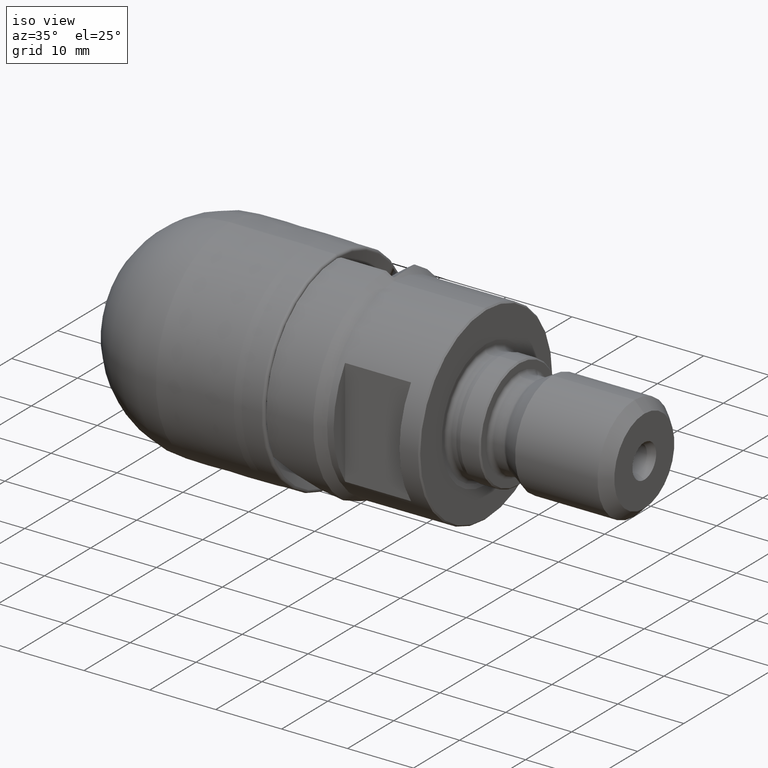
[diagram: clean part render]
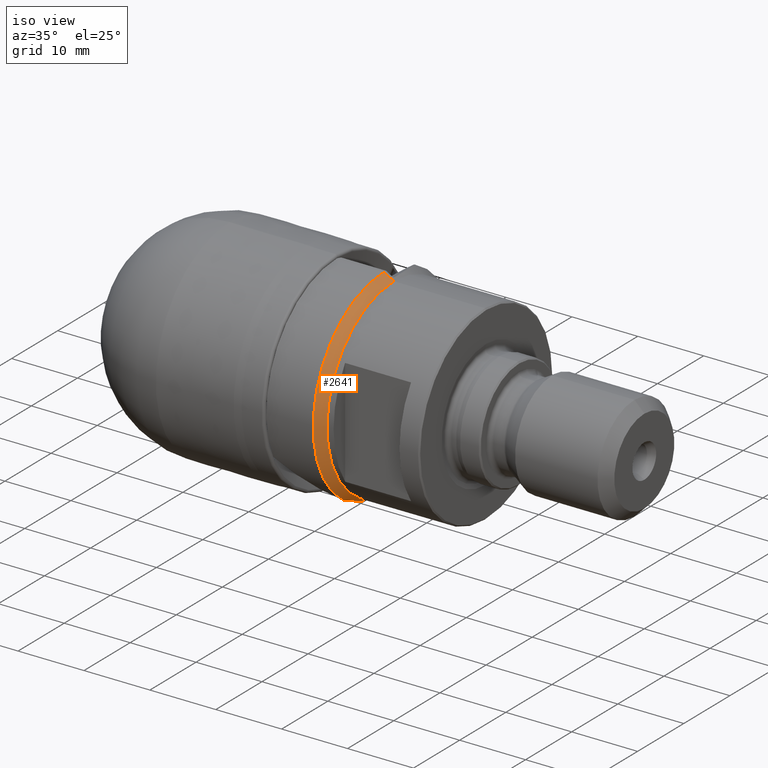
[diagram: same view with one face highlighted and labeled with its STEP entity id]
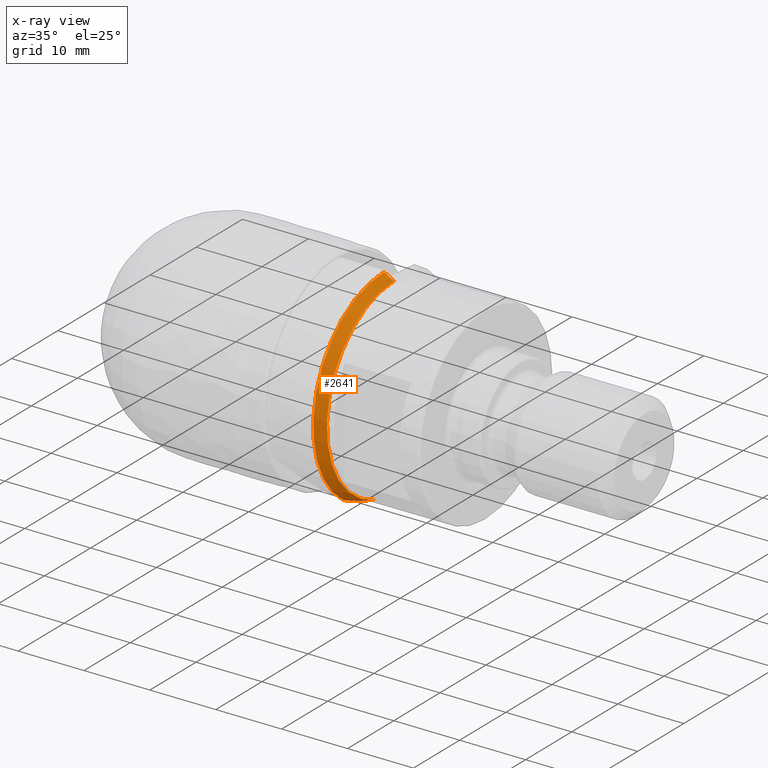
[diagram: x-ray of the same camera — body ghosted, the highlighted face saturated]
A machine part, iso view. The second image highlights one B-rep face of the part: STEP entity #2641.
The next image is the same camera in x-ray: the body ghosted, the highlighted face saturated — about 0% of this face is hidden behind the body in this view.
In plain terms, the highlighted conical surface has half-angle 30 deg.
Its self-contained STEP definition (entity closure, byte-faithful):
#9 = EDGE_CURVE ( 'NONE', #2995, #4748, #4597, .T. ) ;
#335 = EDGE_CURVE ( 'NONE', #3639, #3854, #2492, .T. ) ;
#348 = CARTESIAN_POINT ( 'NONE',  ( 35.01559800999999084, 0.0000000000000000000, 1.084202172485504434E-16 ) ) ;
#370 = CARTESIAN_POINT ( 'NONE',  ( 34.19094347606496598, -7.326510210078835073, -13.15173485614012705 ) ) ;
#529 = AXIS2_PLACEMENT_3D ( 'NONE', #348, #1873, #4899 ) ;
#635 = CARTESIAN_POINT ( 'NONE',  ( 35.01559800999999084, 0.0000000000000000000, 1.084202172485504434E-16 ) ) ;
#976 = ORIENTED_EDGE ( 'NONE', *, *, #2085, .F. ) ;
#1260 = CONICAL_SURFACE ( 'NONE', #2072, 14.50000000000000000, 0.5235987755982929315 ) ;
#1468 = EDGE_CURVE ( 'NONE', #4748, #3639, #1802, .T. ) ;
#1493 = CARTESIAN_POINT ( 'NONE',  ( 35.01559800999999794, -4.297169950117389448, -13.84862196826125036 ) ) ;
#1802 = CIRCLE ( 'NONE', #529, 14.50000000000000000 ) ;
#1873 = DIRECTION ( 'NONE',  ( -1.000000000000000000, 0.0000000000000000000, 0.0000000000000000000 ) ) ;
#2011 = ORIENTED_EDGE ( 'NONE', *, *, #9, .T. ) ;
#2072 = AXIS2_PLACEMENT_3D ( 'NONE', #635, #4029, #4369 ) ;
#2085 = EDGE_CURVE ( 'NONE', #2995, #3854, #3382, .T. ) ;
#2167 = DIRECTION ( 'NONE',  ( -0.8660254037844415942, 0.0000000000000000000, 0.4999999999999948930 ) ) ;
#2394 = CARTESIAN_POINT ( 'NONE',  ( 33.52251955386206816, 0.0000000000000000000, 15.36202924857244945 ) ) ;
#2439 = FACE_OUTER_BOUND ( 'NONE', #4733, .T. ) ;
#2492 = LINE ( 'NONE', #2861, #4598 ) ;
#2641 = ADVANCED_FACE ( 'NONE', ( #2439 ), #1260, .T. ) ;
#2739 = DIRECTION ( 'NONE',  ( -1.000000000000000000, 0.0000000000000000000, 0.0000000000000000000 ) ) ;
#2770 = CARTESIAN_POINT ( 'NONE',  ( 35.01559800999999794, -4.297169950117389448, -13.84862196826125036 ) ) ;
#2861 = CARTESIAN_POINT ( 'NONE',  ( 35.01559800999999084, 0.0000000000000000000, 14.50000000000000000 ) ) ;
#2995 = VERTEX_POINT ( 'NONE', #3555 ) ;
#3248 = ORIENTED_EDGE ( 'NONE', *, *, #335, .T. ) ;
#3382 = CIRCLE ( 'NONE', #3850, 15.36202924857244767 ) ;
#3384 = CARTESIAN_POINT ( 'NONE',  ( 33.52251955386206816, -8.806961710224534556, -12.58687284708295451 ) ) ;
#3499 = ORIENTED_EDGE ( 'NONE', *, *, #1468, .T. ) ;
#3555 = CARTESIAN_POINT ( 'NONE',  ( 33.52251955386206816, -8.806961710224534556, -12.58687284708295451 ) ) ;
#3639 = VERTEX_POINT ( 'NONE', #3993 ) ;
#3850 = AXIS2_PLACEMENT_3D ( 'NONE', #4600, #2739, #4261 ) ;
#3854 = VERTEX_POINT ( 'NONE', #2394 ) ;
#3993 = CARTESIAN_POINT ( 'NONE',  ( 35.01559800999999084, 0.0000000000000000000, 14.50000000000000178 ) ) ;
#4029 = DIRECTION ( 'NONE',  ( -1.000000000000000000, 0.0000000000000000000, 0.0000000000000000000 ) ) ;
#4261 = DIRECTION ( 'NONE',  ( 0.0000000000000000000, 0.0000000000000000000, 1.000000000000000000 ) ) ;
#4369 = DIRECTION ( 'NONE',  ( 0.0000000000000000000, 0.0000000000000000000, 1.000000000000000000 ) ) ;
#4597 =( BOUNDED_CURVE ( )  B_SPLINE_CURVE ( 3, ( #3384, #370, #4896, #1493 ),
 .UNSPECIFIED., .F., .F. ) 
 B_SPLINE_CURVE_WITH_KNOTS ( ( 4, 4 ),
 ( 2.869866850372494227, 3.010258111485595744 ),
 .UNSPECIFIED. ) 
 CURVE ( )  GEOMETRIC_REPRESENTATION_ITEM ( )  RATIONAL_B_SPLINE_CURVE ( ( 1.000000000000000000, 0.9983581988042808941, 0.9983581988042808941, 1.000000000000000000 ) ) 
 REPRESENTATION_ITEM ( '' )  );
#4598 = VECTOR ( 'NONE', #2167, 999.9999999999998863 ) ;
#4600 = CARTESIAN_POINT ( 'NONE',  ( 33.52251955386206816, 0.0000000000000000000, 0.0000000000000000000 ) ) ;
#4733 = EDGE_LOOP ( 'NONE', ( #3499, #3248, #976, #2011 ) ) ;
#4748 = VERTEX_POINT ( 'NONE', #2770 ) ;
#4896 = CARTESIAN_POINT ( 'NONE',  ( 34.68945475118517408, -5.820774170813415971, -13.57300954582213492 ) ) ;
#4899 = DIRECTION ( 'NONE',  ( 0.0000000000000000000, 0.0000000000000000000, 1.000000000000000000 ) ) ;